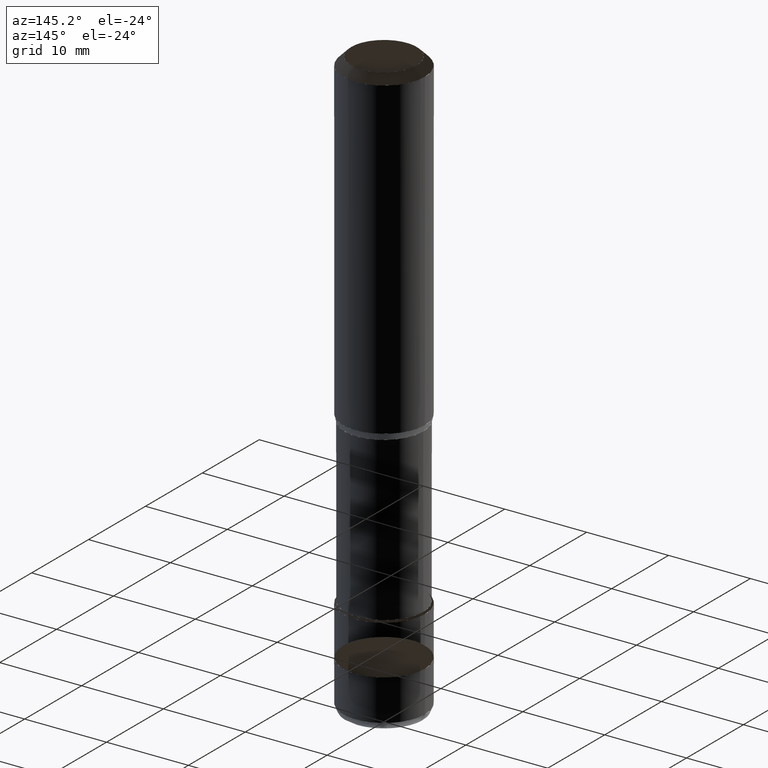
[diagram: clean part render]
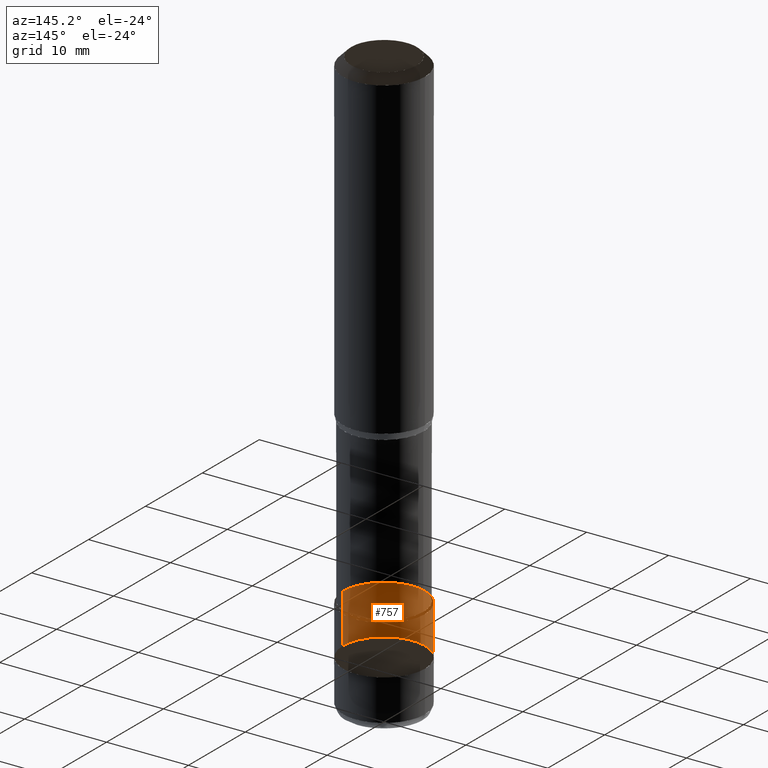
[diagram: same view with one face highlighted and labeled with its STEP entity id]
A machine part, auxiliary view. The second image highlights one B-rep face of the part: STEP entity #757.
In plain terms, the highlighted face is a freeform B-spline surface patch.
Its self-contained STEP definition (entity closure, byte-faithful):
#494=CARTESIAN_POINT('',(5.0,0.0,-26.746410161514));
#495=CARTESIAN_POINT('',(5.0,5.0,-26.746410161514));
#496=CARTESIAN_POINT('',(0.0,5.0,-26.746410161514));
#497=CARTESIAN_POINT('',(-5.0,5.0,-26.746410161514));
#498=CARTESIAN_POINT('',(-5.0,0.0,-26.746410161514));
#518=CARTESIAN_POINT('',(5.0,0.0,-20.746410161514));
#519=CARTESIAN_POINT('',(5.0,5.0,-20.746410161514));
#520=CARTESIAN_POINT('',(0.0,5.0,-20.746410161514));
#521=CARTESIAN_POINT('',(-5.0,5.0,-20.746410161514));
#522=CARTESIAN_POINT('',(-5.0,0.0,-20.746410161514));
#738=(
BOUNDED_SURFACE()
B_SPLINE_SURFACE(1,2,(
(#494,#495,#496,#497,#498),
(#518,#519,#520,#521,#522)
), .UNSPECIFIED.,.F.,.F.,.F.)
B_SPLINE_SURFACE_WITH_KNOTS((2,2),(3,2,3),(
0.0,1.0),(
0.0,0.5,1.0), .UNSPECIFIED.)
GEOMETRIC_REPRESENTATION_ITEM()
RATIONAL_B_SPLINE_SURFACE(((1.0,0.707106781187,1.0,0.707106781187,1.0),
(1.0,0.707106781187,1.0,0.707106781187,1.0)
))
REPRESENTATION_ITEM('')
SURFACE()
);
#739=(
BOUNDED_CURVE()
B_SPLINE_CURVE(2,(#498,#497,#496,#495,#494),.UNSPECIFIED.,.F.,.F.)
B_SPLINE_CURVE_WITH_KNOTS((3,2,3),
(0.0,0.5,1.0),.UNSPECIFIED.)
CURVE()
GEOMETRIC_REPRESENTATION_ITEM()
RATIONAL_B_SPLINE_CURVE((1.0,0.707106781187,1.0,0.707106781187,1.0))
REPRESENTATION_ITEM('')
);
#740=(
BOUNDED_CURVE()
B_SPLINE_CURVE(1,(#494,#518),.UNSPECIFIED.,.F.,.F.)
B_SPLINE_CURVE_WITH_KNOTS((2,2),
(0.0,1.0),.UNSPECIFIED.)
CURVE()
GEOMETRIC_REPRESENTATION_ITEM()
RATIONAL_B_SPLINE_CURVE((1.0,1.0))
REPRESENTATION_ITEM('')
);
#741=(
BOUNDED_CURVE()
B_SPLINE_CURVE(2,(#518,#519,#520,#521,#522),.UNSPECIFIED.,.F.,.F.)
B_SPLINE_CURVE_WITH_KNOTS((3,2,3),
(0.0,0.5,1.0),.UNSPECIFIED.)
CURVE()
GEOMETRIC_REPRESENTATION_ITEM()
RATIONAL_B_SPLINE_CURVE((1.0,0.707106781187,1.0,0.707106781187,1.0))
REPRESENTATION_ITEM('')
);
#742=(
BOUNDED_CURVE()
B_SPLINE_CURVE(1,(#522,#498),.UNSPECIFIED.,.F.,.F.)
B_SPLINE_CURVE_WITH_KNOTS((2,2),
(0.0,1.0),.UNSPECIFIED.)
CURVE()
GEOMETRIC_REPRESENTATION_ITEM()
RATIONAL_B_SPLINE_CURVE((1.0,1.0))
REPRESENTATION_ITEM('')
);
#743=VERTEX_POINT('',#494);
#744=VERTEX_POINT('',#498);
#745=VERTEX_POINT('',#518);
#746=VERTEX_POINT('',#522);
#747=EDGE_CURVE('',#744,#743,#739,.T.);
#748=EDGE_CURVE('',#743,#745,#740,.T.);
#749=EDGE_CURVE('',#745,#746,#741,.T.);
#750=EDGE_CURVE('',#746,#744,#742,.T.);
#751=ORIENTED_EDGE('',*,*,#747,.T.);
#752=ORIENTED_EDGE('',*,*,#748,.T.);
#753=ORIENTED_EDGE('',*,*,#749,.T.);
#754=ORIENTED_EDGE('',*,*,#750,.T.);
#755=EDGE_LOOP('',(#751,#752,#753,#754));
#756=FACE_OUTER_BOUND('',#755,.T.);
#757=ADVANCED_FACE('',(#756),#738,.T.);